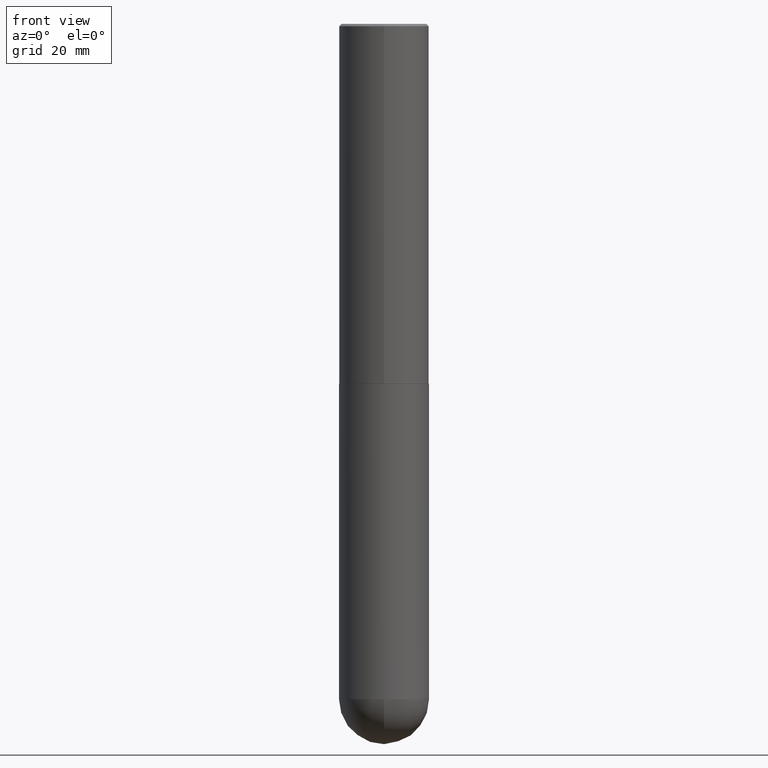
[diagram: clean part render]
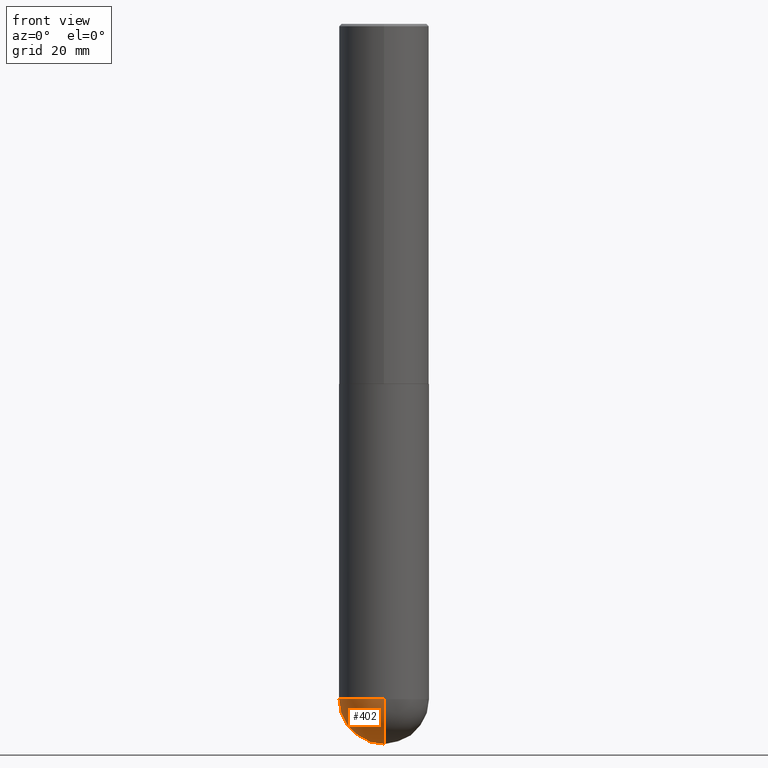
[diagram: same view with one face highlighted and labeled with its STEP entity id]
A machine part, front view. The second image highlights one B-rep face of the part: STEP entity #402.
In plain terms, the highlighted spherical surface has radius 9.525 mm.
Its self-contained STEP definition (entity closure, byte-faithful):
#5 = VERTEX_POINT ( 'NONE', #10 ) ;
#8 = DIRECTION ( 'NONE',  ( 6.982962677686266711E-15, 1.000000000000000000, -2.913971193241873667E-15 ) ) ;
#10 = CARTESIAN_POINT ( 'NONE',  ( 2.618611004132489250E-15, 0.3749999999999805711, -5.625000000000000888 ) ) ;
#14 = AXIS2_PLACEMENT_3D ( 'NONE', #260, #395, #307 ) ;
#17 = DIRECTION ( 'NONE',  ( -7.105427357600999492E-15, -1.000000000000000000, 0.000000000000000000 ) ) ;
#19 = EDGE_CURVE ( 'NONE', #226, #5, #177, .T. ) ;
#28 = AXIS2_PLACEMENT_3D ( 'NONE', #45, #318, #8 ) ;
#38 = AXIS2_PLACEMENT_3D ( 'NONE', #228, #389, #227 ) ;
#45 = CARTESIAN_POINT ( 'NONE',  ( 1.342464225687750823E-28, -2.011376489913274799E-14, -5.625000000000000000 ) ) ;
#47 = ORIENTED_EDGE ( 'NONE', *, *, #19, .F. ) ;
#49 = EDGE_CURVE ( 'NONE', #5, #68, #400, .T. ) ;
#68 = VERTEX_POINT ( 'NONE', #327 ) ;
#80 = CARTESIAN_POINT ( 'NONE',  ( 1.375576203479139336E-28, -1.963958253099269612E-14, -5.625000000000000000 ) ) ;
#139 = FACE_OUTER_BOUND ( 'NONE', #351, .T. ) ;
#161 = EDGE_CURVE ( 'NONE', #68, #244, #330, .T. ) ;
#167 = ORIENTED_EDGE ( 'NONE', *, *, #49, .F. ) ;
#177 = CIRCLE ( 'NONE', #38, 0.3750000000000009437 ) ;
#184 = DIRECTION ( 'NONE',  ( -2.445468806185136597E-29, 3.491481338843145583E-15, 1.000000000000000000 ) ) ;
#193 = CARTESIAN_POINT ( 'NONE',  ( 1.342464225687750823E-28, -2.011376489913274799E-14, -5.625000000000000000 ) ) ;
#197 = CIRCLE ( 'NONE', #391, 0.3750000000000009437 ) ;
#212 = CARTESIAN_POINT ( 'NONE',  ( 1.435772742711905261E-28, -2.140010827371491963E-14, -6.000000000000001776 ) ) ;
#214 = ORIENTED_EDGE ( 'NONE', *, *, #161, .F. ) ;
#223 = SPHERICAL_SURFACE ( 'NONE', #28, 0.3750000000000009437 ) ;
#226 = VERTEX_POINT ( 'NONE', #212 ) ;
#227 = DIRECTION ( 'NONE',  ( 6.982962677686265922E-15, 1.000000000000000000, 0.000000000000000000 ) ) ;
#228 = CARTESIAN_POINT ( 'NONE',  ( 1.342464225687750823E-28, -2.011376489913274799E-14, -5.625000000000000000 ) ) ;
#244 = VERTEX_POINT ( 'NONE', #270 ) ;
#257 = DIRECTION ( 'NONE',  ( -1.000000000000000000, 7.105427357601001070E-15, -4.926315508542082329E-29 ) ) ;
#260 = CARTESIAN_POINT ( 'NONE',  ( 1.375576203479139336E-28, -1.963958253099269612E-14, -5.625000000000000000 ) ) ;
#270 = CARTESIAN_POINT ( 'NONE',  ( -2.664535259100242380E-15, -0.3750000000000204281, -5.624999999999999112 ) ) ;
#294 = AXIS2_PLACEMENT_3D ( 'NONE', #80, #184, #387 ) ;
#307 = DIRECTION ( 'NONE',  ( 1.000000000000000000, -6.982962677686270655E-15, 0.000000000000000000 ) ) ;
#318 = DIRECTION ( 'NONE',  ( -1.000000000000000000, 6.982962677686266711E-15, -4.883557194083113462E-29 ) ) ;
#327 = CARTESIAN_POINT ( 'NONE',  ( -0.3750000000000001110, -1.239247801466069291E-14, -5.625000000000000000 ) ) ;
#330 = CIRCLE ( 'NONE', #14, 0.3750000000000001110 ) ;
#346 = ORIENTED_EDGE ( 'NONE', *, *, #396, .T. ) ;
#351 = EDGE_LOOP ( 'NONE', ( #47, #346, #214, #167 ) ) ;
#387 = DIRECTION ( 'NONE',  ( 1.000000000000000000, -6.982962677686270655E-15, 0.000000000000000000 ) ) ;
#389 = DIRECTION ( 'NONE',  ( 1.000000000000000000, -6.982962677686265922E-15, 4.883557194083112340E-29 ) ) ;
#391 = AXIS2_PLACEMENT_3D ( 'NONE', #193, #257, #17 ) ;
#395 = DIRECTION ( 'NONE',  ( -2.445468806185136597E-29, 3.491481338843145583E-15, 1.000000000000000000 ) ) ;
#396 = EDGE_CURVE ( 'NONE', #226, #244, #197, .T. ) ;
#400 = CIRCLE ( 'NONE', #294, 0.3750000000000001110 ) ;
#402 = ADVANCED_FACE ( 'NONE', ( #139 ), #223, .T. ) ;